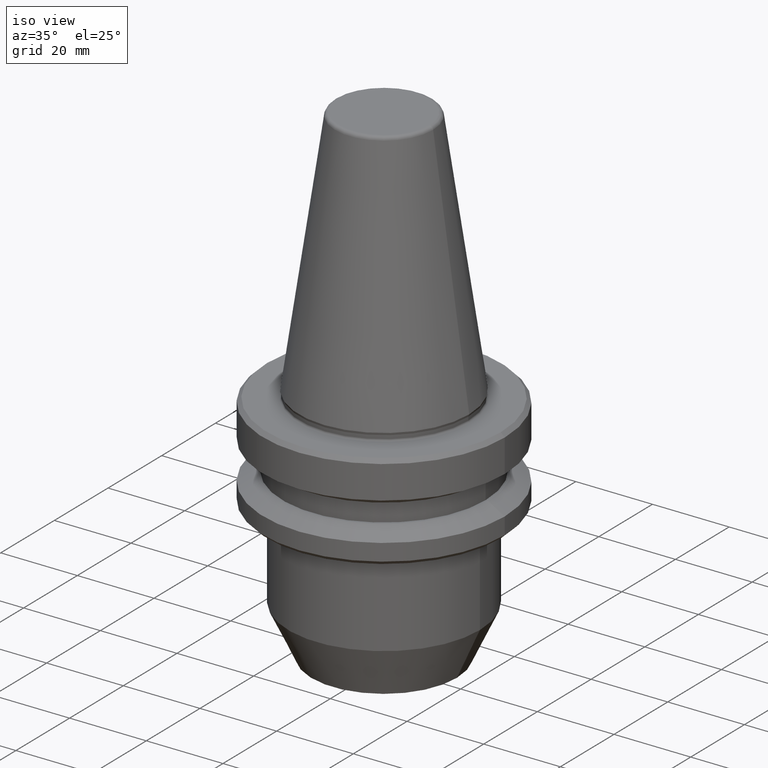
[diagram: clean part render]
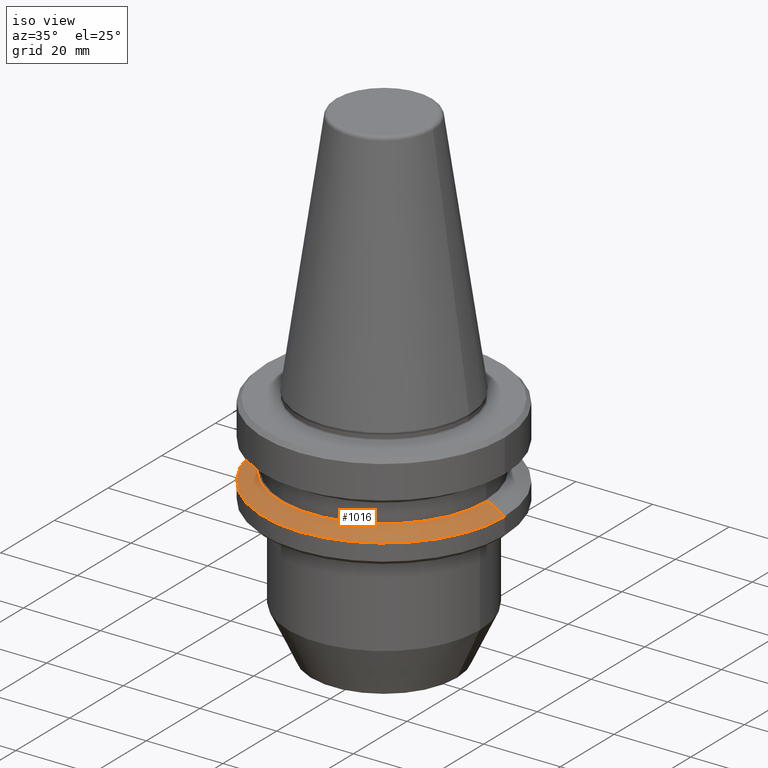
[diagram: same view with one face highlighted and labeled with its STEP entity id]
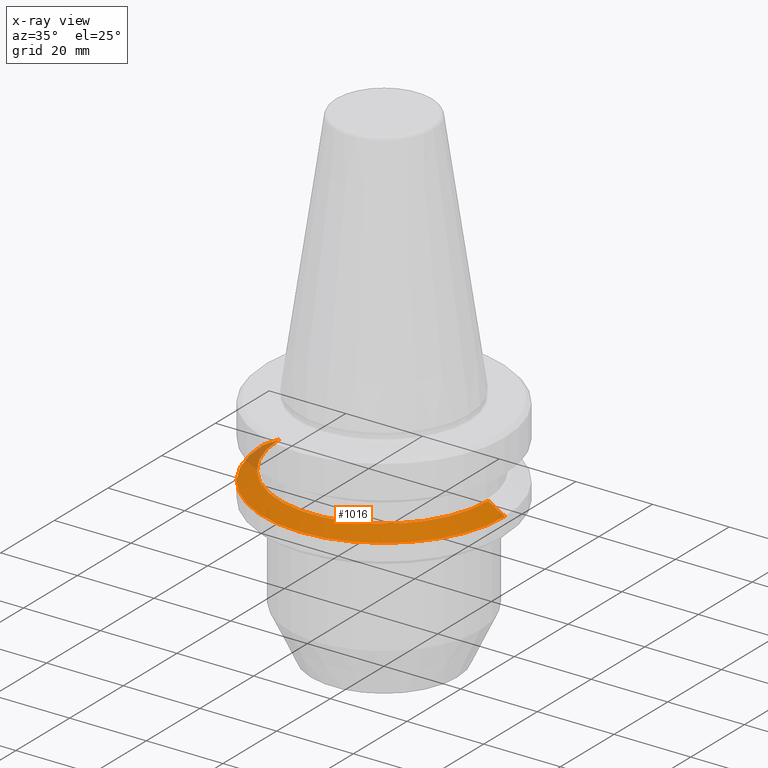
[diagram: x-ray of the same camera — body ghosted, the highlighted face saturated]
A machine part, iso view. The second image highlights one B-rep face of the part: STEP entity #1016.
The next image is the same camera in x-ray: the body ghosted, the highlighted face saturated — about 4% of this face is hidden behind the body in this view.
In plain terms, the highlighted conical surface has half-angle 60 deg.
Its self-contained STEP definition (entity closure, byte-faithful):
#40 = AXIS2_PLACEMENT_3D ( 'NONE', #698, #630, #124 ) ;
#45 = CARTESIAN_POINT ( 'NONE',  ( -31.50000000000019500, 3.857637417314186400E-015, -20.91142879476059900 ) ) ;
#60 = AXIS2_PLACEMENT_3D ( 'NONE', #390, #917, #466 ) ;
#64 = AXIS2_PLACEMENT_3D ( 'NONE', #1045, #608, #101 ) ;
#101 = DIRECTION ( 'NONE',  ( 1.000000000000000000, 0.0000000000000000000, 0.0000000000000000000 ) ) ;
#124 = DIRECTION ( 'NONE',  ( -1.000000000000000000, 0.0000000000000000000, 0.0000000000000000000 ) ) ;
#201 = CARTESIAN_POINT ( 'NONE',  ( -27.16962701892167300, 0.0000000000000000000, -18.41128678844344800 ) ) ;
#231 = EDGE_CURVE ( 'NONE', #840, #617, #416, .T. ) ;
#245 = CARTESIAN_POINT ( 'NONE',  ( 31.50000000000019500, 0.0000000000000000000, -20.91142879476059900 ) ) ;
#298 = VERTEX_POINT ( 'NONE', #245 ) ;
#335 = CARTESIAN_POINT ( 'NONE',  ( 31.50000000000019500, 3.857637417314186400E-015, -20.91142879476059900 ) ) ;
#390 = CARTESIAN_POINT ( 'NONE',  ( 0.0000000000000000000, 0.0000000000000000000, -18.41128678844344800 ) ) ;
#394 = VECTOR ( 'NONE', #907, 1000.000000000000000 ) ;
#416 = LINE ( 'NONE', #971, #394 ) ;
#443 = ORIENTED_EDGE ( 'NONE', *, *, #864, .F. ) ;
#451 = ORIENTED_EDGE ( 'NONE', *, *, #231, .T. ) ;
#466 = DIRECTION ( 'NONE',  ( 1.000000000000000000, 0.0000000000000000000, 0.0000000000000000000 ) ) ;
#475 = CIRCLE ( 'NONE', #64, 31.50000000000019500 ) ;
#528 = CARTESIAN_POINT ( 'NONE',  ( 27.16962701892167300, 3.592478546794586600E-015, -18.41128678844344800 ) ) ;
#573 = ORIENTED_EDGE ( 'NONE', *, *, #835, .T. ) ;
#580 = FACE_OUTER_BOUND ( 'NONE', #766, .T. ) ;
#608 = DIRECTION ( 'NONE',  ( -0.0000000000000000000, -0.0000000000000000000, 1.000000000000000000 ) ) ;
#617 = VERTEX_POINT ( 'NONE', #45 ) ;
#630 = DIRECTION ( 'NONE',  ( 0.0000000000000000000, 0.0000000000000000000, -1.000000000000000000 ) ) ;
#647 = CIRCLE ( 'NONE', #60, 27.16962701892167300 ) ;
#678 = ORIENTED_EDGE ( 'NONE', *, *, #693, .F. ) ;
#693 = EDGE_CURVE ( 'NONE', #849, #298, #884, .T. ) ;
#698 = CARTESIAN_POINT ( 'NONE',  ( 0.0000000000000000000, 0.0000000000000000000, -20.91142879476059900 ) ) ;
#766 = EDGE_LOOP ( 'NONE', ( #678, #443, #451, #573 ) ) ;
#786 = DIRECTION ( 'NONE',  ( 0.8660254037844400400, 1.060575238724908600E-016, -0.4999999999999976100 ) ) ;
#835 = EDGE_CURVE ( 'NONE', #617, #298, #475, .T. ) ;
#840 = VERTEX_POINT ( 'NONE', #201 ) ;
#849 = VERTEX_POINT ( 'NONE', #528 ) ;
#864 = EDGE_CURVE ( 'NONE', #840, #849, #647, .T. ) ;
#884 = LINE ( 'NONE', #335, #1047 ) ;
#907 = DIRECTION ( 'NONE',  ( -0.8660254037844400400, 0.0000000000000000000, -0.4999999999999976100 ) ) ;
#909 = CONICAL_SURFACE ( 'NONE', #40, 31.50000000000019500, 1.047197551196600500 ) ;
#917 = DIRECTION ( 'NONE',  ( -0.0000000000000000000, -0.0000000000000000000, 1.000000000000000000 ) ) ;
#971 = CARTESIAN_POINT ( 'NONE',  ( -31.50000000000019500, 0.0000000000000000000, -20.91142879476059900 ) ) ;
#1016 = ADVANCED_FACE ( 'NONE', ( #580 ), #909, .T. ) ;
#1045 = CARTESIAN_POINT ( 'NONE',  ( 0.0000000000000000000, 0.0000000000000000000, -20.91142879476059900 ) ) ;
#1047 = VECTOR ( 'NONE', #786, 1000.000000000000000 ) ;